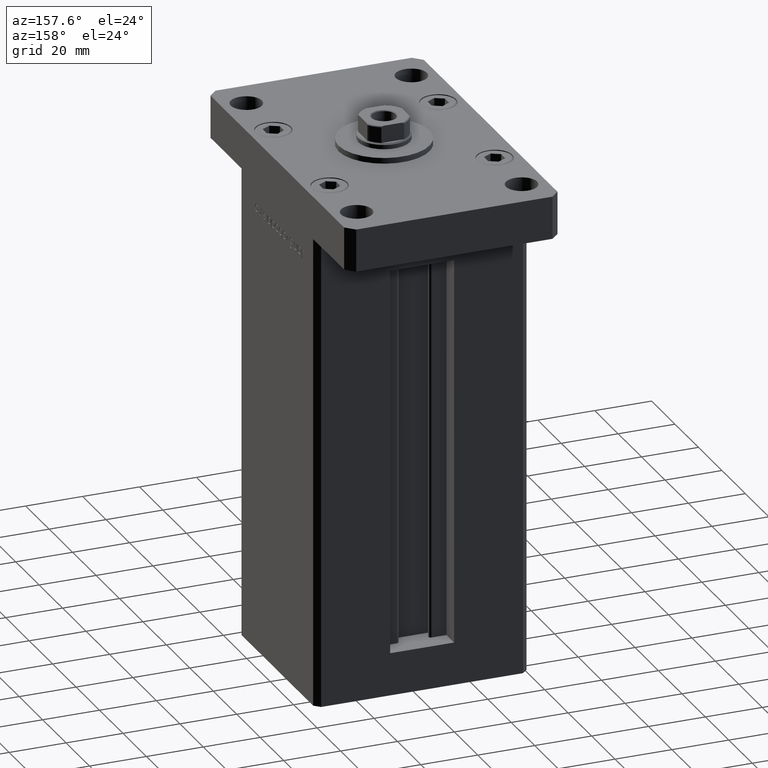
[diagram: clean part render]
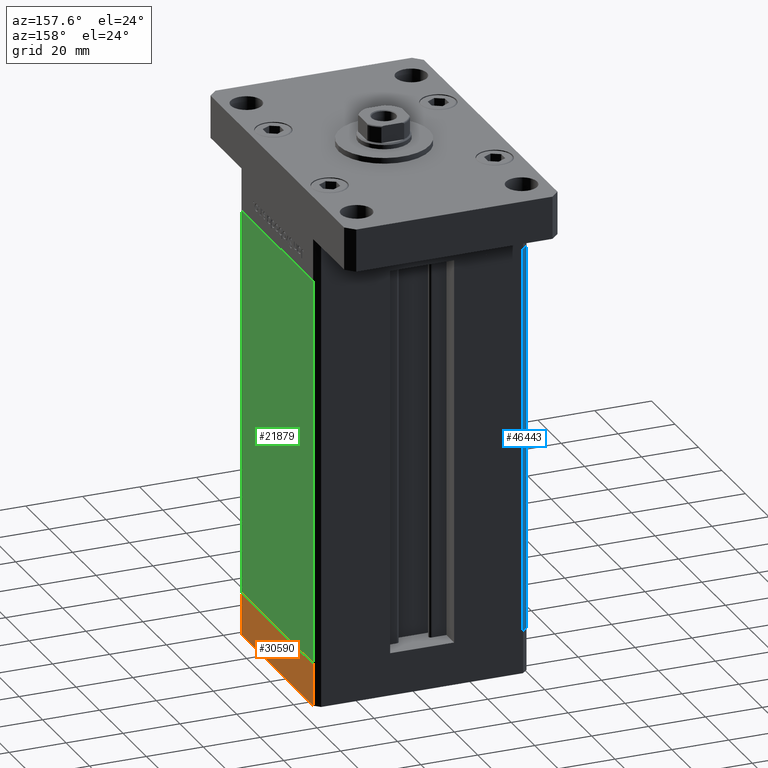
[diagram: same view with three faces highlighted in distinct colors, each labeled with its STEP entity id]
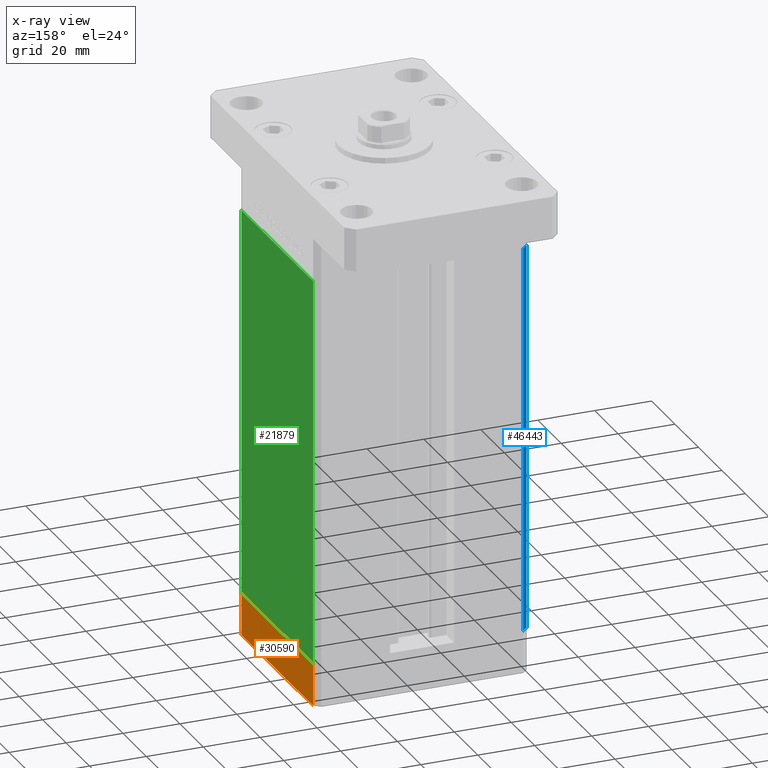
[diagram: x-ray of the same camera — body ghosted, the three highlighted faces saturated]
A machine part, auxiliary view with three faces highlighted in distinct colors.
The next image is the same camera in x-ray (body ghosted, the three faces saturated) — at least one of them is partly hidden behind the body in this view.
Their STEP definitions:

[orange] entity #30590 — the highlighted planar face has unit normal (1, -0, 0).
#3685 = ORIENTED_EDGE ( 'NONE', *, *, #52857, .F. ) ;
#4010 = ORIENTED_EDGE ( 'NONE', *, *, #36512, .T. ) ;
#4635 = EDGE_CURVE ( 'NONE', #9802, #29080, #40483, .T. ) ;
#5669 = PLANE ( 'NONE',  #20704 ) ;
#5982 = DIRECTION ( 'NONE',  ( 4.550094363217855288E-16, -1.000000000000000000, 0.000000000000000000 ) ) ;
#9802 = VERTEX_POINT ( 'NONE', #25270 ) ;
#10534 = FACE_OUTER_BOUND ( 'NONE', #16096, .T. ) ;
#12484 = CARTESIAN_POINT ( 'NONE',  ( -37.50000000000001421, 30.49999999999998579, -15.00000000000000000 ) ) ;
#16096 = EDGE_LOOP ( 'NONE', ( #27333, #3685, #4010, #17279 ) ) ;
#16209 = VERTEX_POINT ( 'NONE', #33058 ) ;
#17147 = CARTESIAN_POINT ( 'NONE',  ( -37.49999999999998579, -30.50000000000001421, 0.000000000000000000 ) ) ;
#17279 = ORIENTED_EDGE ( 'NONE', *, *, #4635, .T. ) ;
#17913 = CARTESIAN_POINT ( 'NONE',  ( -37.50000000000001421, 30.49999999999998579, -15.00000000000000000 ) ) ;
#19060 = DIRECTION ( 'NONE',  ( 0.000000000000000000, 0.000000000000000000, 1.000000000000000000 ) ) ;
#19248 = VECTOR ( 'NONE', #22791, 1000.000000000000000 ) ;
#20154 = DIRECTION ( 'NONE',  ( 0.000000000000000000, 0.000000000000000000, 1.000000000000000000 ) ) ;
#20704 = AXIS2_PLACEMENT_3D ( 'NONE', #38480, #47679, #22194 ) ;
#22194 = DIRECTION ( 'NONE',  ( 4.550094363217855288E-16, -1.000000000000000000, 0.000000000000000000 ) ) ;
#22240 = LINE ( 'NONE', #17913, #48443 ) ;
#22791 = DIRECTION ( 'NONE',  ( 4.550094363217855288E-16, -1.000000000000000000, 0.000000000000000000 ) ) ;
#25270 = CARTESIAN_POINT ( 'NONE',  ( -37.49999999999998579, -30.50000000000001421, -15.00000000000000000 ) ) ;
#27333 = ORIENTED_EDGE ( 'NONE', *, *, #37530, .F. ) ;
#27725 = LINE ( 'NONE', #45081, #30061 ) ;
#29080 = VERTEX_POINT ( 'NONE', #17147 ) ;
#29495 = VERTEX_POINT ( 'NONE', #12484 ) ;
#30061 = VECTOR ( 'NONE', #19060, 1000.000000000000000 ) ;
#30590 = ADVANCED_FACE ( 'NONE', ( #10534 ), #5669, .T. ) ;
#31277 = VECTOR ( 'NONE', #20154, 1000.000000000000000 ) ;
#33058 = CARTESIAN_POINT ( 'NONE',  ( -37.50000000000001421, 30.49999999999998579, 0.000000000000000000 ) ) ;
#34033 = CARTESIAN_POINT ( 'NONE',  ( -37.50000000000001421, 30.49999999999998579, 0.000000000000000000 ) ) ;
#36512 = EDGE_CURVE ( 'NONE', #29495, #9802, #22240, .T. ) ;
#37530 = EDGE_CURVE ( 'NONE', #16209, #29080, #37833, .T. ) ;
#37833 = LINE ( 'NONE', #34033, #19248 ) ;
#38480 = CARTESIAN_POINT ( 'NONE',  ( -37.50000000000001421, 30.49999999999998579, -15.00000000000000000 ) ) ;
#40483 = LINE ( 'NONE', #45104, #31277 ) ;
#45081 = CARTESIAN_POINT ( 'NONE',  ( -37.50000000000001421, 30.49999999999998579, -15.00000000000000000 ) ) ;
#45104 = CARTESIAN_POINT ( 'NONE',  ( -37.49999999999998579, -30.50000000000001421, -15.00000000000000000 ) ) ;
#47679 = DIRECTION ( 'NONE',  ( -1.000000000000000000, -4.550094363217855288E-16, 0.000000000000000000 ) ) ;
#48443 = VECTOR ( 'NONE', #5982, 1000.000000000000000 ) ;
#52857 = EDGE_CURVE ( 'NONE', #29495, #16209, #27725, .T. ) ;

[blue] entity #46443 — the highlighted planar face has unit normal (0.7071, -0.7071, 0).
#459 = CARTESIAN_POINT ( 'NONE',  ( -35.50000000000000000, 32.49999999999999289, 0.000000000000000000 ) ) ;
#1977 = CARTESIAN_POINT ( 'NONE',  ( -35.50000000000000000, 32.49999999999999289, 0.000000000000000000 ) ) ;
#3437 = EDGE_CURVE ( 'NONE', #12459, #4323, #45430, .T. ) ;
#4323 = VERTEX_POINT ( 'NONE', #44899 ) ;
#7322 = VECTOR ( 'NONE', #51059, 1000.000000000000114 ) ;
#9633 = DIRECTION ( 'NONE',  ( -0.000000000000000000, -0.000000000000000000, -1.000000000000000000 ) ) ;
#12459 = VERTEX_POINT ( 'NONE', #28169 ) ;
#13163 = EDGE_CURVE ( 'NONE', #22001, #12459, #17447, .T. ) ;
#13200 = DIRECTION ( 'NONE',  ( -0.7071067811865500152, -0.7071067811865451302, 0.000000000000000000 ) ) ;
#14045 = CARTESIAN_POINT ( 'NONE',  ( -35.50000000000000000, 32.49999999999999289, 136.0000000000000000 ) ) ;
#14771 = ORIENTED_EDGE ( 'NONE', *, *, #3437, .F. ) ;
#15395 = EDGE_CURVE ( 'NONE', #22001, #32760, #46771, .T. ) ;
#16462 = LINE ( 'NONE', #459, #38627 ) ;
#16535 = ORIENTED_EDGE ( 'NONE', *, *, #13163, .F. ) ;
#17447 = LINE ( 'NONE', #34526, #7322 ) ;
#17643 = VECTOR ( 'NONE', #48955, 1000.000000000000000 ) ;
#19192 = EDGE_CURVE ( 'NONE', #32760, #4323, #16462, .T. ) ;
#22001 = VERTEX_POINT ( 'NONE', #14045 ) ;
#22064 = AXIS2_PLACEMENT_3D ( 'NONE', #32053, #35582, #52923 ) ;
#24941 = EDGE_LOOP ( 'NONE', ( #26172, #14771, #16535, #46846 ) ) ;
#26172 = ORIENTED_EDGE ( 'NONE', *, *, #19192, .T. ) ;
#28169 = CARTESIAN_POINT ( 'NONE',  ( -37.50000000000000711, 30.50000000000000000, 136.0000000000000000 ) ) ;
#31251 = FACE_OUTER_BOUND ( 'NONE', #24941, .T. ) ;
#32053 = CARTESIAN_POINT ( 'NONE',  ( -35.50000000000000000, 32.49999999999999289, 136.0000000000000000 ) ) ;
#32477 = VECTOR ( 'NONE', #9633, 1000.000000000000000 ) ;
#32760 = VERTEX_POINT ( 'NONE', #1977 ) ;
#34526 = CARTESIAN_POINT ( 'NONE',  ( -35.50000000000000000, 32.49999999999999289, 136.0000000000000000 ) ) ;
#35582 = DIRECTION ( 'NONE',  ( 0.7071067811865451302, -0.7071067811865500152, 0.000000000000000000 ) ) ;
#38627 = VECTOR ( 'NONE', #13200, 1000.000000000000114 ) ;
#44899 = CARTESIAN_POINT ( 'NONE',  ( -37.50000000000000711, 30.50000000000000000, 0.000000000000000000 ) ) ;
#45430 = LINE ( 'NONE', #49511, #17643 ) ;
#46443 = ADVANCED_FACE ( 'NONE', ( #31251 ), #52660, .F. ) ;
#46771 = LINE ( 'NONE', #51365, #32477 ) ;
#46846 = ORIENTED_EDGE ( 'NONE', *, *, #15395, .T. ) ;
#48955 = DIRECTION ( 'NONE',  ( -0.000000000000000000, -0.000000000000000000, -1.000000000000000000 ) ) ;
#49511 = CARTESIAN_POINT ( 'NONE',  ( -37.50000000000000711, 30.50000000000000000, 136.0000000000000000 ) ) ;
#51059 = DIRECTION ( 'NONE',  ( -0.7071067811865500152, -0.7071067811865451302, 0.000000000000000000 ) ) ;
#51365 = CARTESIAN_POINT ( 'NONE',  ( -35.50000000000000000, 32.49999999999999289, 136.0000000000000000 ) ) ;
#52660 = PLANE ( 'NONE',  #22064 ) ;
#52923 = DIRECTION ( 'NONE',  ( 0.7071067811865500152, 0.7071067811865451302, 0.000000000000000000 ) ) ;

[green] entity #21879 — the highlighted planar face has unit normal (1, -0, 0).
#2656 = CARTESIAN_POINT ( 'NONE',  ( 37.50000000000000711, 30.50000000000000000, 136.0000000000000000 ) ) ;
#4594 = CARTESIAN_POINT ( 'NONE',  ( 37.50000000000000711, 30.50000000000000000, 136.0000000000000000 ) ) ;
#5882 = DIRECTION ( 'NONE',  ( -2.275047181608927644E-16, -1.000000000000000000, 0.000000000000000000 ) ) ;
#6479 = CARTESIAN_POINT ( 'NONE',  ( 37.50000000000000711, 30.50000000000000000, 136.0000000000000000 ) ) ;
#7112 = VECTOR ( 'NONE', #10538, 1000.000000000000000 ) ;
#10515 = ORIENTED_EDGE ( 'NONE', *, *, #37805, .F. ) ;
#10538 = DIRECTION ( 'NONE',  ( -0.000000000000000000, -0.000000000000000000, -1.000000000000000000 ) ) ;
#11234 = EDGE_CURVE ( 'NONE', #32841, #44288, #29684, .T. ) ;
#13188 = ORIENTED_EDGE ( 'NONE', *, *, #53171, .T. ) ;
#14486 = VERTEX_POINT ( 'NONE', #34304 ) ;
#18606 = LINE ( 'NONE', #51690, #45549 ) ;
#19526 = AXIS2_PLACEMENT_3D ( 'NONE', #4594, #21117, #24938 ) ;
#21117 = DIRECTION ( 'NONE',  ( 1.000000000000000000, -2.275047181608927644E-16, 0.000000000000000000 ) ) ;
#21879 = ADVANCED_FACE ( 'NONE', ( #44998 ), #49069, .T. ) ;
#23023 = VECTOR ( 'NONE', #53140, 1000.000000000000000 ) ;
#24938 = DIRECTION ( 'NONE',  ( 2.275047181608927644E-16, 1.000000000000000000, 0.000000000000000000 ) ) ;
#27985 = CARTESIAN_POINT ( 'NONE',  ( 37.49999999999999289, -30.50000000000000000, 136.0000000000000000 ) ) ;
#29684 = LINE ( 'NONE', #29951, #49686 ) ;
#29951 = CARTESIAN_POINT ( 'NONE',  ( 37.49999999999999289, -30.50000000000000000, 136.0000000000000000 ) ) ;
#32841 = VERTEX_POINT ( 'NONE', #27985 ) ;
#33093 = CARTESIAN_POINT ( 'NONE',  ( 37.49999999999999289, -30.50000000000000000, 0.000000000000000000 ) ) ;
#34304 = CARTESIAN_POINT ( 'NONE',  ( 37.50000000000000711, 30.50000000000000000, 0.000000000000000000 ) ) ;
#36594 = CARTESIAN_POINT ( 'NONE',  ( 37.50000000000000711, 30.50000000000000000, 136.0000000000000000 ) ) ;
#37805 = EDGE_CURVE ( 'NONE', #41203, #14486, #47683, .T. ) ;
#41203 = VERTEX_POINT ( 'NONE', #2656 ) ;
#42663 = DIRECTION ( 'NONE',  ( -0.000000000000000000, -0.000000000000000000, -1.000000000000000000 ) ) ;
#43935 = LINE ( 'NONE', #36594, #23023 ) ;
#44288 = VERTEX_POINT ( 'NONE', #33093 ) ;
#44998 = FACE_OUTER_BOUND ( 'NONE', #52395, .T. ) ;
#45549 = VECTOR ( 'NONE', #5882, 1000.000000000000000 ) ;
#45557 = ORIENTED_EDGE ( 'NONE', *, *, #11234, .T. ) ;
#46804 = ORIENTED_EDGE ( 'NONE', *, *, #52316, .F. ) ;
#47683 = LINE ( 'NONE', #6479, #7112 ) ;
#49069 = PLANE ( 'NONE',  #19526 ) ;
#49686 = VECTOR ( 'NONE', #42663, 1000.000000000000000 ) ;
#51690 = CARTESIAN_POINT ( 'NONE',  ( 37.50000000000000711, 30.50000000000000000, 0.000000000000000000 ) ) ;
#52316 = EDGE_CURVE ( 'NONE', #14486, #44288, #18606, .T. ) ;
#52395 = EDGE_LOOP ( 'NONE', ( #46804, #10515, #13188, #45557 ) ) ;
#53140 = DIRECTION ( 'NONE',  ( -2.275047181608927644E-16, -1.000000000000000000, 0.000000000000000000 ) ) ;
#53171 = EDGE_CURVE ( 'NONE', #41203, #32841, #43935, .T. ) ;